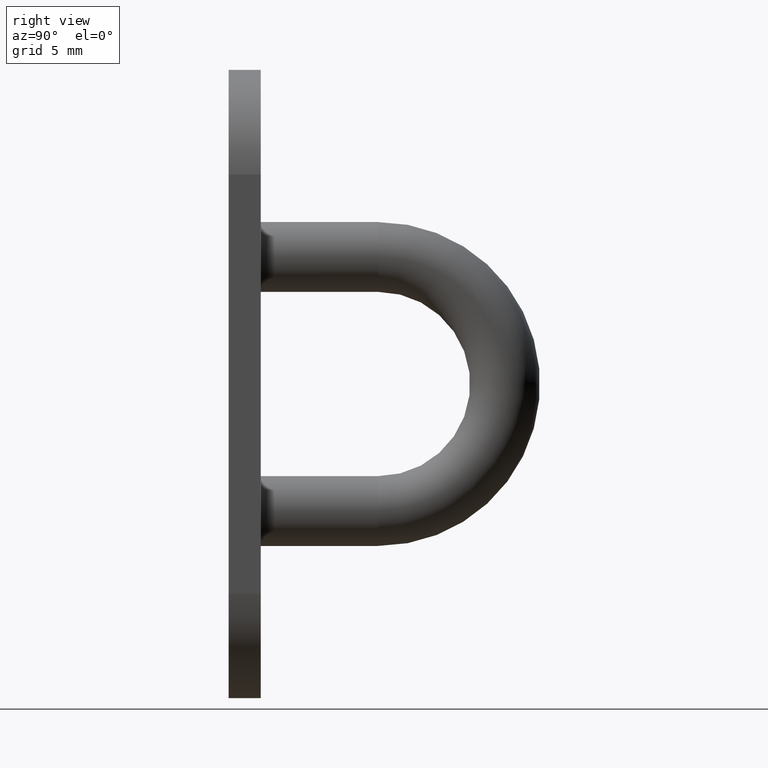
[diagram: clean part render]
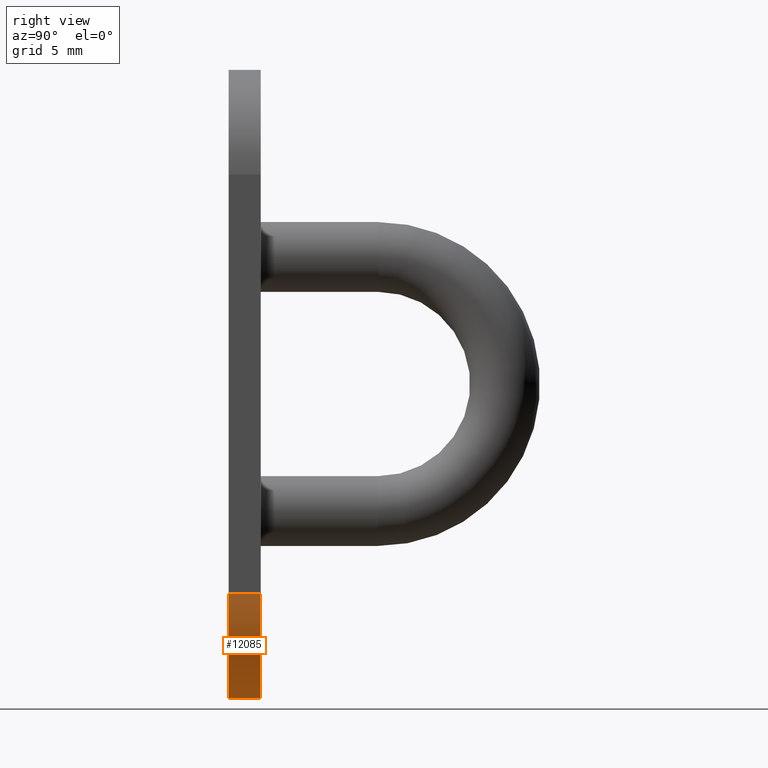
[diagram: same view with one face highlighted and labeled with its STEP entity id]
A machine part, right view. The second image highlights one B-rep face of the part: STEP entity #12085.
In plain terms, the highlighted cylindrical surface (partial cylindrical patch) has radius 7.5 mm, axis along (-0, -1, -0).
Its self-contained STEP definition (entity closure, byte-faithful):
#495 = LINE ( 'NONE', #10942, #9604 ) ;
#676 = CARTESIAN_POINT ( 'NONE',  ( -7.464513823374346600E-015, 2.299999999999999800, -15.00000000000000000 ) ) ;
#1264 = DIRECTION ( 'NONE',  ( 0.0000000000000000000, 0.0000000000000000000, 1.000000000000000000 ) ) ;
#2007 = EDGE_LOOP ( 'NONE', ( #6765, #4174, #7860, #9024 ) ) ;
#2080 = DIRECTION ( 'NONE',  ( 0.0000000000000000000, 0.0000000000000000000, 1.000000000000000000 ) ) ;
#2470 = CARTESIAN_POINT ( 'NONE',  ( -7.464513823374346600E-015, 2.299999999999999800, -22.50000000000001100 ) ) ;
#3804 = AXIS2_PLACEMENT_3D ( 'NONE', #12278, #4021, #2080 ) ;
#3830 = CARTESIAN_POINT ( 'NONE',  ( 7.500000000000016900, 2.299999999999999800, -14.99999999999999600 ) ) ;
#4021 = DIRECTION ( 'NONE',  ( 0.0000000000000000000, 1.000000000000000000, 0.0000000000000000000 ) ) ;
#4064 = CARTESIAN_POINT ( 'NONE',  ( -7.464513823374346600E-015, 2.299999999999999800, -22.50000000000001400 ) ) ;
#4071 = AXIS2_PLACEMENT_3D ( 'NONE', #676, #6047, #13304 ) ;
#4174 = ORIENTED_EDGE ( 'NONE', *, *, #6832, .F. ) ;
#4644 = CIRCLE ( 'NONE', #3804, 7.500000000000010700 ) ;
#5393 = CARTESIAN_POINT ( 'NONE',  ( -7.464513823374346600E-015, 2.299999999999999800, -15.00000000000000000 ) ) ;
#6047 = DIRECTION ( 'NONE',  ( -0.0000000000000000000, -1.000000000000000000, -0.0000000000000000000 ) ) ;
#6087 = CYLINDRICAL_SURFACE ( 'NONE', #4071, 7.500000000000009800 ) ;
#6590 = LINE ( 'NONE', #2470, #9540 ) ;
#6765 = ORIENTED_EDGE ( 'NONE', *, *, #8778, .F. ) ;
#6832 = EDGE_CURVE ( 'NONE', #9841, #8299, #7674, .T. ) ;
#7104 = AXIS2_PLACEMENT_3D ( 'NONE', #5393, #7472, #1264 ) ;
#7472 = DIRECTION ( 'NONE',  ( 0.0000000000000000000, 1.000000000000000000, 0.0000000000000000000 ) ) ;
#7674 = CIRCLE ( 'NONE', #7104, 7.500000000000010700 ) ;
#7860 = ORIENTED_EDGE ( 'NONE', *, *, #7996, .T. ) ;
#7996 = EDGE_CURVE ( 'NONE', #9841, #10480, #495, .T. ) ;
#8130 = VERTEX_POINT ( 'NONE', #12395 ) ;
#8299 = VERTEX_POINT ( 'NONE', #4064 ) ;
#8778 = EDGE_CURVE ( 'NONE', #8299, #8130, #6590, .T. ) ;
#9024 = ORIENTED_EDGE ( 'NONE', *, *, #13375, .T. ) ;
#9540 = VECTOR ( 'NONE', #12909, 1000.000000000000000 ) ;
#9604 = VECTOR ( 'NONE', #12982, 1000.000000000000000 ) ;
#9697 = CARTESIAN_POINT ( 'NONE',  ( 7.500000000000016900, 0.0000000000000000000, -14.99999999999999600 ) ) ;
#9841 = VERTEX_POINT ( 'NONE', #3830 ) ;
#10480 = VERTEX_POINT ( 'NONE', #9697 ) ;
#10942 = CARTESIAN_POINT ( 'NONE',  ( 7.500000000000016900, 2.299999999999999800, -14.99999999999999600 ) ) ;
#12085 = ADVANCED_FACE ( 'NONE', ( #13384 ), #6087, .T. ) ;
#12278 = CARTESIAN_POINT ( 'NONE',  ( -7.464513823374346600E-015, 0.0000000000000000000, -15.00000000000000000 ) ) ;
#12395 = CARTESIAN_POINT ( 'NONE',  ( -7.464513823374346600E-015, 0.0000000000000000000, -22.50000000000001400 ) ) ;
#12909 = DIRECTION ( 'NONE',  ( -0.0000000000000000000, -1.000000000000000000, -0.0000000000000000000 ) ) ;
#12982 = DIRECTION ( 'NONE',  ( -0.0000000000000000000, -1.000000000000000000, -0.0000000000000000000 ) ) ;
#13304 = DIRECTION ( 'NONE',  ( 0.0000000000000000000, 0.0000000000000000000, -1.000000000000000000 ) ) ;
#13375 = EDGE_CURVE ( 'NONE', #10480, #8130, #4644, .T. ) ;
#13384 = FACE_OUTER_BOUND ( 'NONE', #2007, .T. ) ;